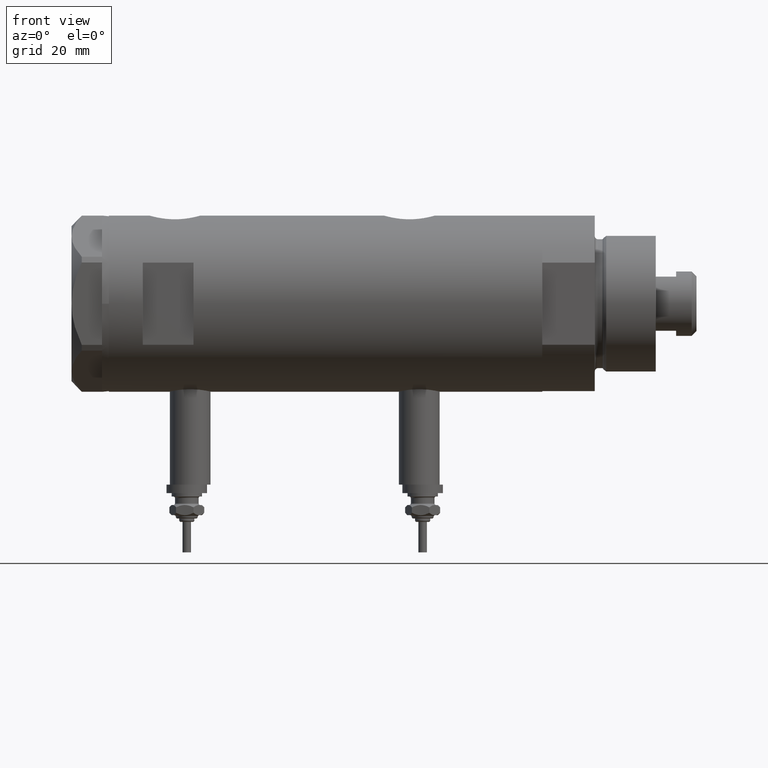
[diagram: clean part render]
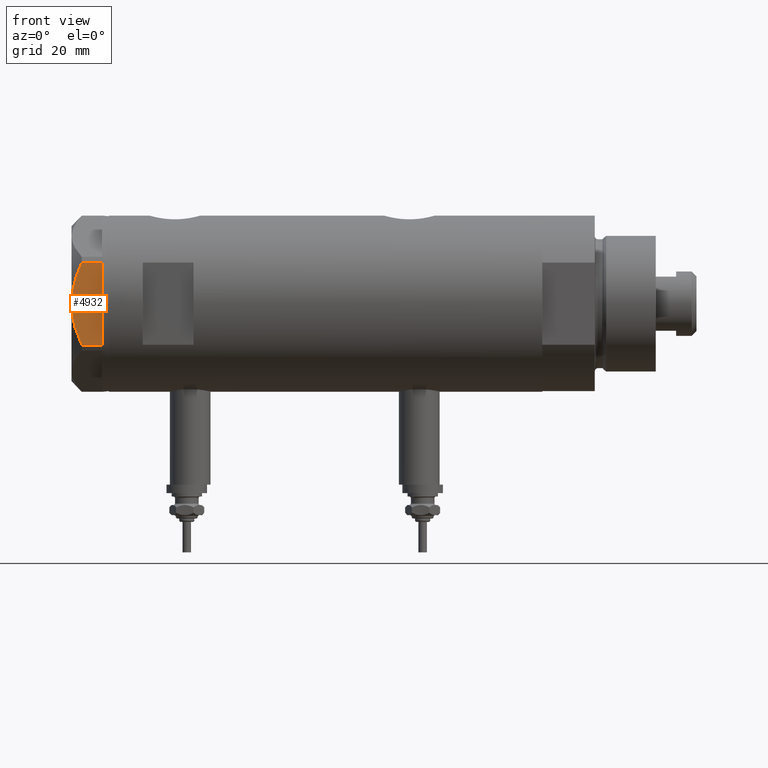
[diagram: same view with one face highlighted and labeled with its STEP entity id]
A machine part, front view. The second image highlights one B-rep face of the part: STEP entity #4932.
In plain terms, the highlighted planar face has unit normal (-0, 1, -0).
Its self-contained STEP definition (entity closure, byte-faithful):
#25 = CARTESIAN_POINT ( 'NONE',  ( -22.99999999999992895, -5.228918809624124364, 8.433337033849854336 ) ) ;
#56 = FACE_OUTER_BOUND ( 'NONE', #4983, .T. ) ;
#98 = EDGE_CURVE ( 'NONE', #2397, #3217, #2858, .T. ) ;
#159 = ORIENTED_EDGE ( 'NONE', *, *, #1690, .F. ) ;
#347 = LINE ( 'NONE', #5128, #2781 ) ;
#371 = LINE ( 'NONE', #5732, #2084 ) ;
#397 = VERTEX_POINT ( 'NONE', #1400 ) ;
#424 = VERTEX_POINT ( 'NONE', #1487 ) ;
#512 = CARTESIAN_POINT ( 'NONE',  ( -22.99999999999993250, -4.203926054641964782, 8.641681223122507305 ) ) ;
#532 = PLANE ( 'NONE',  #4357 ) ;
#913 = CARTESIAN_POINT ( 'NONE',  ( -22.99999999999999289, 12.15905619136133176, 5.983800287807616414 ) ) ;
#1269 = EDGE_CURVE ( 'NONE', #3217, #5060, #371, .T. ) ;
#1400 = CARTESIAN_POINT ( 'NONE',  ( -22.99999999999990763, -12.15905619136147564, 5.983800287807627072 ) ) ;
#1451 = LINE ( 'NONE', #5457, #1680 ) ;
#1453 = EDGE_CURVE ( 'NONE', #2397, #6050, #5808, .T. ) ;
#1487 = CARTESIAN_POINT ( 'NONE',  ( -22.99999999999990763, -12.15905619136147386, 0.000000000000000000 ) ) ;
#1507 = CARTESIAN_POINT ( 'NONE',  ( -22.99999999999991829, -9.734726261263297431, 7.028924700095662281 ) ) ;
#1533 = EDGE_CURVE ( 'NONE', #2497, #424, #1451, .T. ) ;
#1646 = ORIENTED_EDGE ( 'NONE', *, *, #1916, .T. ) ;
#1680 = VECTOR ( 'NONE', #2475, 1000.000000000000000 ) ;
#1690 = EDGE_CURVE ( 'NONE', #6050, #397, #2892, .T. ) ;
#1797 = VECTOR ( 'NONE', #4197, 1000.000000000000000 ) ;
#1862 = ORIENTED_EDGE ( 'NONE', *, *, #1269, .T. ) ;
#1897 = CARTESIAN_POINT ( 'NONE',  ( -22.99999999999998224, 8.246028007352361300, 7.571131808646907935 ) ) ;
#1903 = EDGE_CURVE ( 'NONE', #424, #397, #347, .T. ) ;
#1916 = EDGE_CURVE ( 'NONE', #5060, #2497, #2737, .T. ) ;
#1927 = CARTESIAN_POINT ( 'NONE',  ( -22.99999999999991118, -10.22738952213794761, 6.832470313674783746 ) ) ;
#1957 = CARTESIAN_POINT ( 'NONE',  ( -23.00000000000004619, -8.112498833180673323E-14, 9.000000000000000000 ) ) ;
#2084 = VECTOR ( 'NONE', #2281, 1000.000000000000000 ) ;
#2184 = ORIENTED_EDGE ( 'NONE', *, *, #98, .T. ) ;
#2281 = DIRECTION ( 'NONE',  ( 3.527173405730720141E-15, -1.000000000000000000, 0.000000000000000000 ) ) ;
#2355 = CARTESIAN_POINT ( 'NONE',  ( -22.99999999999997513, 8.748091966971378142, 7.396818978284571244 ) ) ;
#2379 = CARTESIAN_POINT ( 'NONE',  ( -22.99999999999993960, -2.119709279061923191, 8.908535212173198659 ) ) ;
#2397 = VERTEX_POINT ( 'NONE', #3741 ) ;
#2475 = DIRECTION ( 'NONE',  ( 3.527173405730720141E-15, -1.000000000000000000, 0.000000000000000000 ) ) ;
#2497 = VERTEX_POINT ( 'NONE', #5464 ) ;
#2499 = DIRECTION ( 'NONE',  ( 1.000000000000000000, 3.527173405730720141E-15, -0.000000000000000000 ) ) ;
#2704 = DIRECTION ( 'NONE',  ( 0.000000000000000000, 0.000000000000000000, 1.000000000000000000 ) ) ;
#2737 = LINE ( 'NONE', #5163, #1797 ) ;
#2781 = VECTOR ( 'NONE', #2704, 1000.000000000000000 ) ;
#2858 = LINE ( 'NONE', #6290, #4608 ) ;
#2861 = CARTESIAN_POINT ( 'NONE',  ( -22.99999999999996803, 4.194757081058972936, 8.703000351525203016 ) ) ;
#2892 = B_SPLINE_CURVE_WITH_KNOTS ( 'NONE', 3,
 ( #1957, #3881, #2926, #2379, #4398, #512, #25, #4340, #3442, #1507, #1927, #3467, #5931, #3855 ),
 .UNSPECIFIED., .F., .F.,
 ( 4, 2, 2, 2, 2, 2, 4 ),
 ( 0.04777139595992690307, 0.04934380568070229761, 0.05091621540147769215, 0.05406103484302848122, 0.05720585428457927030, 0.05877826400535466483, 0.06035067372613005937 ),
 .UNSPECIFIED. ) ;
#2926 = CARTESIAN_POINT ( 'NONE',  ( -22.99999999999995026, -1.063773509315737442, 8.981438083606830602 ) ) ;
#3032 = ORIENTED_EDGE ( 'NONE', *, *, #1533, .T. ) ;
#3067 = CARTESIAN_POINT ( 'NONE',  ( -22.99999999999999289, 12.12435565298215856, 0.000000000000000000 ) ) ;
#3151 = CARTESIAN_POINT ( 'NONE',  ( -22.99999999999999289, 12.15905619136133176, 0.000000000000000000 ) ) ;
#3217 = VERTEX_POINT ( 'NONE', #3151 ) ;
#3442 = CARTESIAN_POINT ( 'NONE',  ( -22.99999999999991829, -8.252113629125268801, 7.581642062680223226 ) ) ;
#3467 = CARTESIAN_POINT ( 'NONE',  ( -22.99999999999991118, -11.20155944044816287, 6.421102682632757741 ) ) ;
#3586 = ORIENTED_EDGE ( 'NONE', *, *, #1903, .T. ) ;
#3741 = CARTESIAN_POINT ( 'NONE',  ( -22.99999999999999289, 12.15905619136133176, 5.983800287807616414 ) ) ;
#3820 = CARTESIAN_POINT ( 'NONE',  ( -22.99999999999996803, 7.239756182922199024, 7.892186063422847120 ) ) ;
#3855 = CARTESIAN_POINT ( 'NONE',  ( -22.99999999999990763, -12.15905619136147564, 5.983800287807627072 ) ) ;
#3881 = CARTESIAN_POINT ( 'NONE',  ( -22.99999999999995737, -0.5295934231897764244, 9.000000000000092371 ) ) ;
#4023 = ORIENTED_EDGE ( 'NONE', *, *, #1453, .F. ) ;
#4197 = DIRECTION ( 'NONE',  ( 3.527173405730720141E-15, -1.000000000000000000, 0.000000000000000000 ) ) ;
#4340 = CARTESIAN_POINT ( 'NONE',  ( -22.99999999999992184, -7.253003311474388148, 7.903276810347638737 ) ) ;
#4341 = CARTESIAN_POINT ( 'NONE',  ( -22.99999999999995381, 2.122900714018063795, 9.000000000000092371 ) ) ;
#4357 = AXIS2_PLACEMENT_3D ( 'NONE', #5323, #2499, #6321 ) ;
#4398 = CARTESIAN_POINT ( 'NONE',  ( -22.99999999999993960, -2.643615312305158671, 8.854304560636265364 ) ) ;
#4608 = VECTOR ( 'NONE', #4840, 1000.000000000000000 ) ;
#4718 = CARTESIAN_POINT ( 'NONE',  ( -22.99999999999998934, 11.20825071633916359, 6.428173306378450746 ) ) ;
#4787 = CARTESIAN_POINT ( 'NONE',  ( -22.99999999999998579, 10.23890159976122050, 6.840812428290914404 ) ) ;
#4840 = DIRECTION ( 'NONE',  ( 0.000000000000000000, 0.000000000000000000, -1.000000000000000000 ) ) ;
#4932 = ADVANCED_FACE ( 'NONE', ( #56 ), #532, .F. ) ;
#4983 = EDGE_LOOP ( 'NONE', ( #4023, #2184, #1862, #1646, #3032, #3586, #159 ) ) ;
#5060 = VERTEX_POINT ( 'NONE', #3067 ) ;
#5128 = CARTESIAN_POINT ( 'NONE',  ( -22.99999999999990763, -12.15905619136147386, 9.000000000000000000 ) ) ;
#5163 = CARTESIAN_POINT ( 'NONE',  ( -22.99999999999999645, 13.27905619136132032, 0.000000000000000000 ) ) ;
#5302 = CARTESIAN_POINT ( 'NONE',  ( -22.99999999999997158, 6.734330413511419700, 8.039389741252668031 ) ) ;
#5323 = CARTESIAN_POINT ( 'NONE',  ( -22.99999999999999645, 13.27905619136132032, 9.000000000000000000 ) ) ;
#5457 = CARTESIAN_POINT ( 'NONE',  ( -22.99999999999999645, 13.27905619136132032, 0.000000000000000000 ) ) ;
#5464 = CARTESIAN_POINT ( 'NONE',  ( -22.99999999999990763, -12.12435565298232021, 0.000000000000000000 ) ) ;
#5732 = CARTESIAN_POINT ( 'NONE',  ( -22.99999999999999645, 13.27905619136132032, 0.000000000000000000 ) ) ;
#5808 = B_SPLINE_CURVE_WITH_KNOTS ( 'NONE', 3,
 ( #913, #4718, #4787, #2355, #1897, #3820, #5302, #2861, #4341, #6291 ),
 .UNSPECIFIED., .F., .F.,
 ( 4, 2, 2, 2, 4 ),
 ( 0.03516523594057416324, 0.03831677594541234300, 0.03989254594783143981, 0.04146831595025052969, 0.04777139595992690307 ),
 .UNSPECIFIED. ) ;
#5931 = CARTESIAN_POINT ( 'NONE',  ( -22.99999999999990763, -11.68282849742335827, 6.206372352695425754 ) ) ;
#6050 = VERTEX_POINT ( 'NONE', #6254 ) ;
#6254 = CARTESIAN_POINT ( 'NONE',  ( -23.00000000000004619, -8.112498833180673323E-14, 9.000000000000000000 ) ) ;
#6290 = CARTESIAN_POINT ( 'NONE',  ( -22.99999999999999289, 12.15905619136133176, 9.000000000000000000 ) ) ;
#6291 = CARTESIAN_POINT ( 'NONE',  ( -23.00000000000004619, -8.112498833180673323E-14, 9.000000000000000000 ) ) ;
#6321 = DIRECTION ( 'NONE',  ( -3.527173405730720141E-15, 1.000000000000000000, 0.000000000000000000 ) ) ;